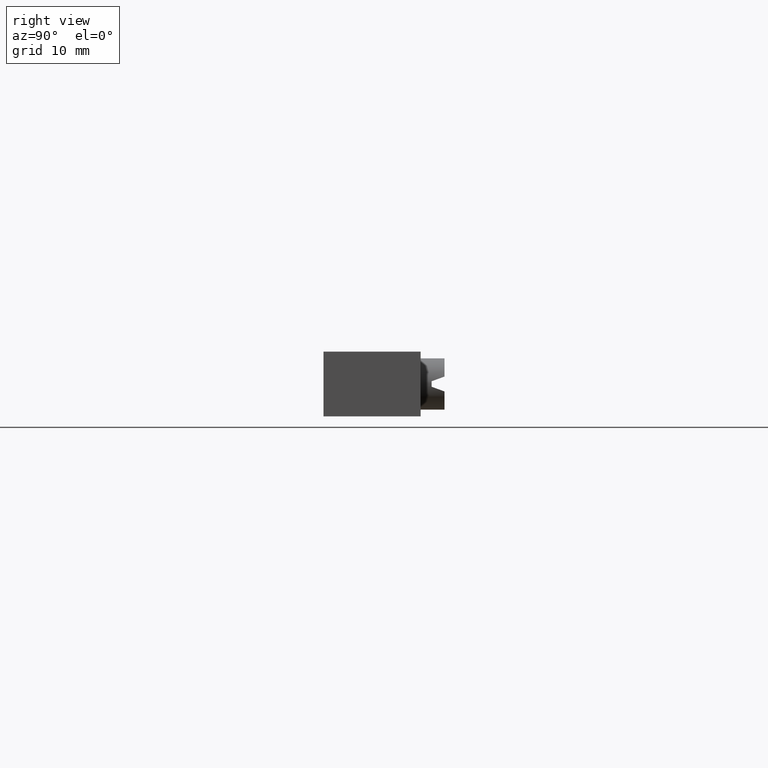
[diagram: clean part render]
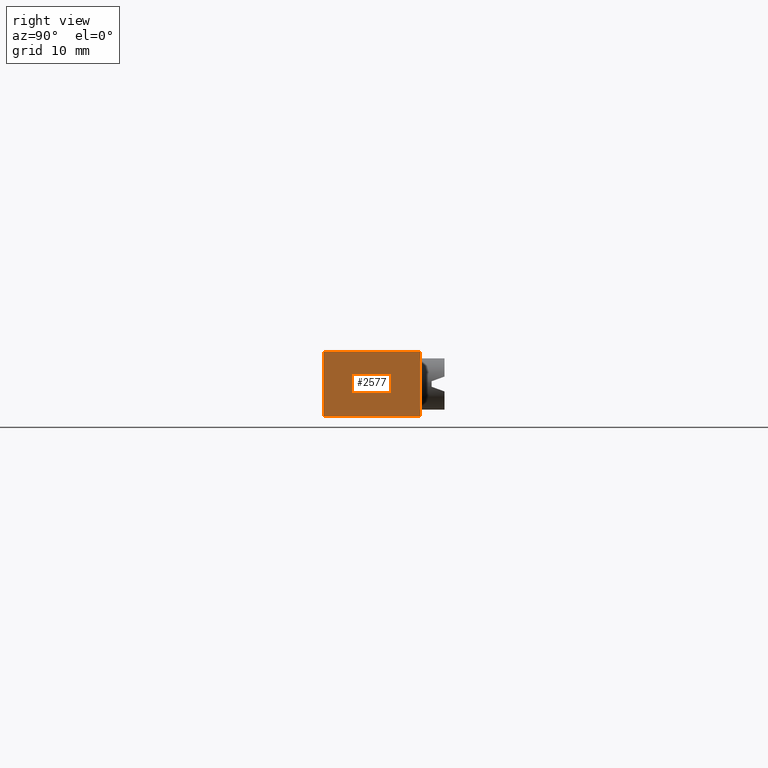
[diagram: same view with one face highlighted and labeled with its STEP entity id]
A machine part, right view. The second image highlights one B-rep face of the part: STEP entity #2577.
In plain terms, the highlighted planar face has unit normal (-1, 0, 0).
Its self-contained STEP definition (entity closure, byte-faithful):
#447 = EDGE_LOOP ( 'NONE', ( #567, #520, #595, #519 ) ) ;
#519 = ORIENTED_EDGE ( 'NONE', *, *, #2654, .F. ) ;
#520 = ORIENTED_EDGE ( 'NONE', *, *, #2644, .F. ) ;
#567 = ORIENTED_EDGE ( 'NONE', *, *, #2653, .F. ) ;
#595 = ORIENTED_EDGE ( 'NONE', *, *, #2668, .T. ) ;
#954 = AXIS2_PLACEMENT_3D ( 'NONE', #3701, #3726, #3705 ) ;
#991 = VECTOR ( 'NONE', #1951, 1000.000000000000000 ) ;
#1027 = VECTOR ( 'NONE', #1962, 1000.000000000000000 ) ;
#1034 = VECTOR ( 'NONE', #2077, 1000.000000000000000 ) ;
#1066 = VECTOR ( 'NONE', #1984, 1000.000000000000000 ) ;
#1915 = LINE ( 'NONE', #1923, #991 ) ;
#1923 = CARTESIAN_POINT ( 'NONE',  ( 117.5000000000000100, 15.00000000000000000, 0.0000000000000000000 ) ) ;
#1951 = DIRECTION ( 'NONE',  ( -0.0000000000000000000, -0.0000000000000000000, -1.000000000000000000 ) ) ;
#1961 = CARTESIAN_POINT ( 'NONE',  ( 117.5000000000000100, 0.0000000000000000000, -10.00000000000000000 ) ) ;
#1962 = DIRECTION ( 'NONE',  ( -0.0000000000000000000, 0.0000000000000000000, 1.000000000000000000 ) ) ;
#1982 = CARTESIAN_POINT ( 'NONE',  ( 117.5000000000000100, 15.00000000000000000, -10.00000000000000000 ) ) ;
#1984 = DIRECTION ( 'NONE',  ( -0.0000000000000000000, -1.000000000000000000, 0.0000000000000000000 ) ) ;
#1991 = LINE ( 'NONE', #1982, #1066 ) ;
#1992 = LINE ( 'NONE', #1961, #1027 ) ;
#2069 = LINE ( 'NONE', #2086, #1034 ) ;
#2077 = DIRECTION ( 'NONE',  ( -0.0000000000000000000, -1.000000000000000000, -0.0000000000000000000 ) ) ;
#2086 = CARTESIAN_POINT ( 'NONE',  ( 117.5000000000000100, 15.00000000000000000, 0.0000000000000000000 ) ) ;
#2388 = CARTESIAN_POINT ( 'NONE',  ( 117.5000000000000100, 0.0000000000000000000, 0.0000000000000000000 ) ) ;
#2415 = CARTESIAN_POINT ( 'NONE',  ( 117.5000000000000100, 0.0000000000000000000, -10.00000000000000000 ) ) ;
#2423 = CARTESIAN_POINT ( 'NONE',  ( 117.5000000000000100, 15.00000000000000000, 0.0000000000000000000 ) ) ;
#2443 = CARTESIAN_POINT ( 'NONE',  ( 117.5000000000000100, 15.00000000000000000, -10.00000000000000000 ) ) ;
#2577 = ADVANCED_FACE ( 'NONE', ( #3718 ), #3725, .F. ) ;
#2644 = EDGE_CURVE ( 'NONE', #3884, #3873, #1915, .T. ) ;
#2653 = EDGE_CURVE ( 'NONE', #3873, #3870, #1991, .T. ) ;
#2654 = EDGE_CURVE ( 'NONE', #3870, #3850, #1992, .T. ) ;
#2668 = EDGE_CURVE ( 'NONE', #3884, #3850, #2069, .T. ) ;
#3701 = CARTESIAN_POINT ( 'NONE',  ( 117.5000000000000100, 15.00000000000000000, 0.0000000000000000000 ) ) ;
#3705 = DIRECTION ( 'NONE',  ( 0.0000000000000000000, 0.0000000000000000000, 1.000000000000000000 ) ) ;
#3718 = FACE_OUTER_BOUND ( 'NONE', #447, .T. ) ;
#3725 = PLANE ( 'NONE',  #954 ) ;
#3726 = DIRECTION ( 'NONE',  ( -1.000000000000000000, 0.0000000000000000000, 0.0000000000000000000 ) ) ;
#3850 = VERTEX_POINT ( 'NONE', #2388 ) ;
#3870 = VERTEX_POINT ( 'NONE', #2415 ) ;
#3873 = VERTEX_POINT ( 'NONE', #2443 ) ;
#3884 = VERTEX_POINT ( 'NONE', #2423 ) ;